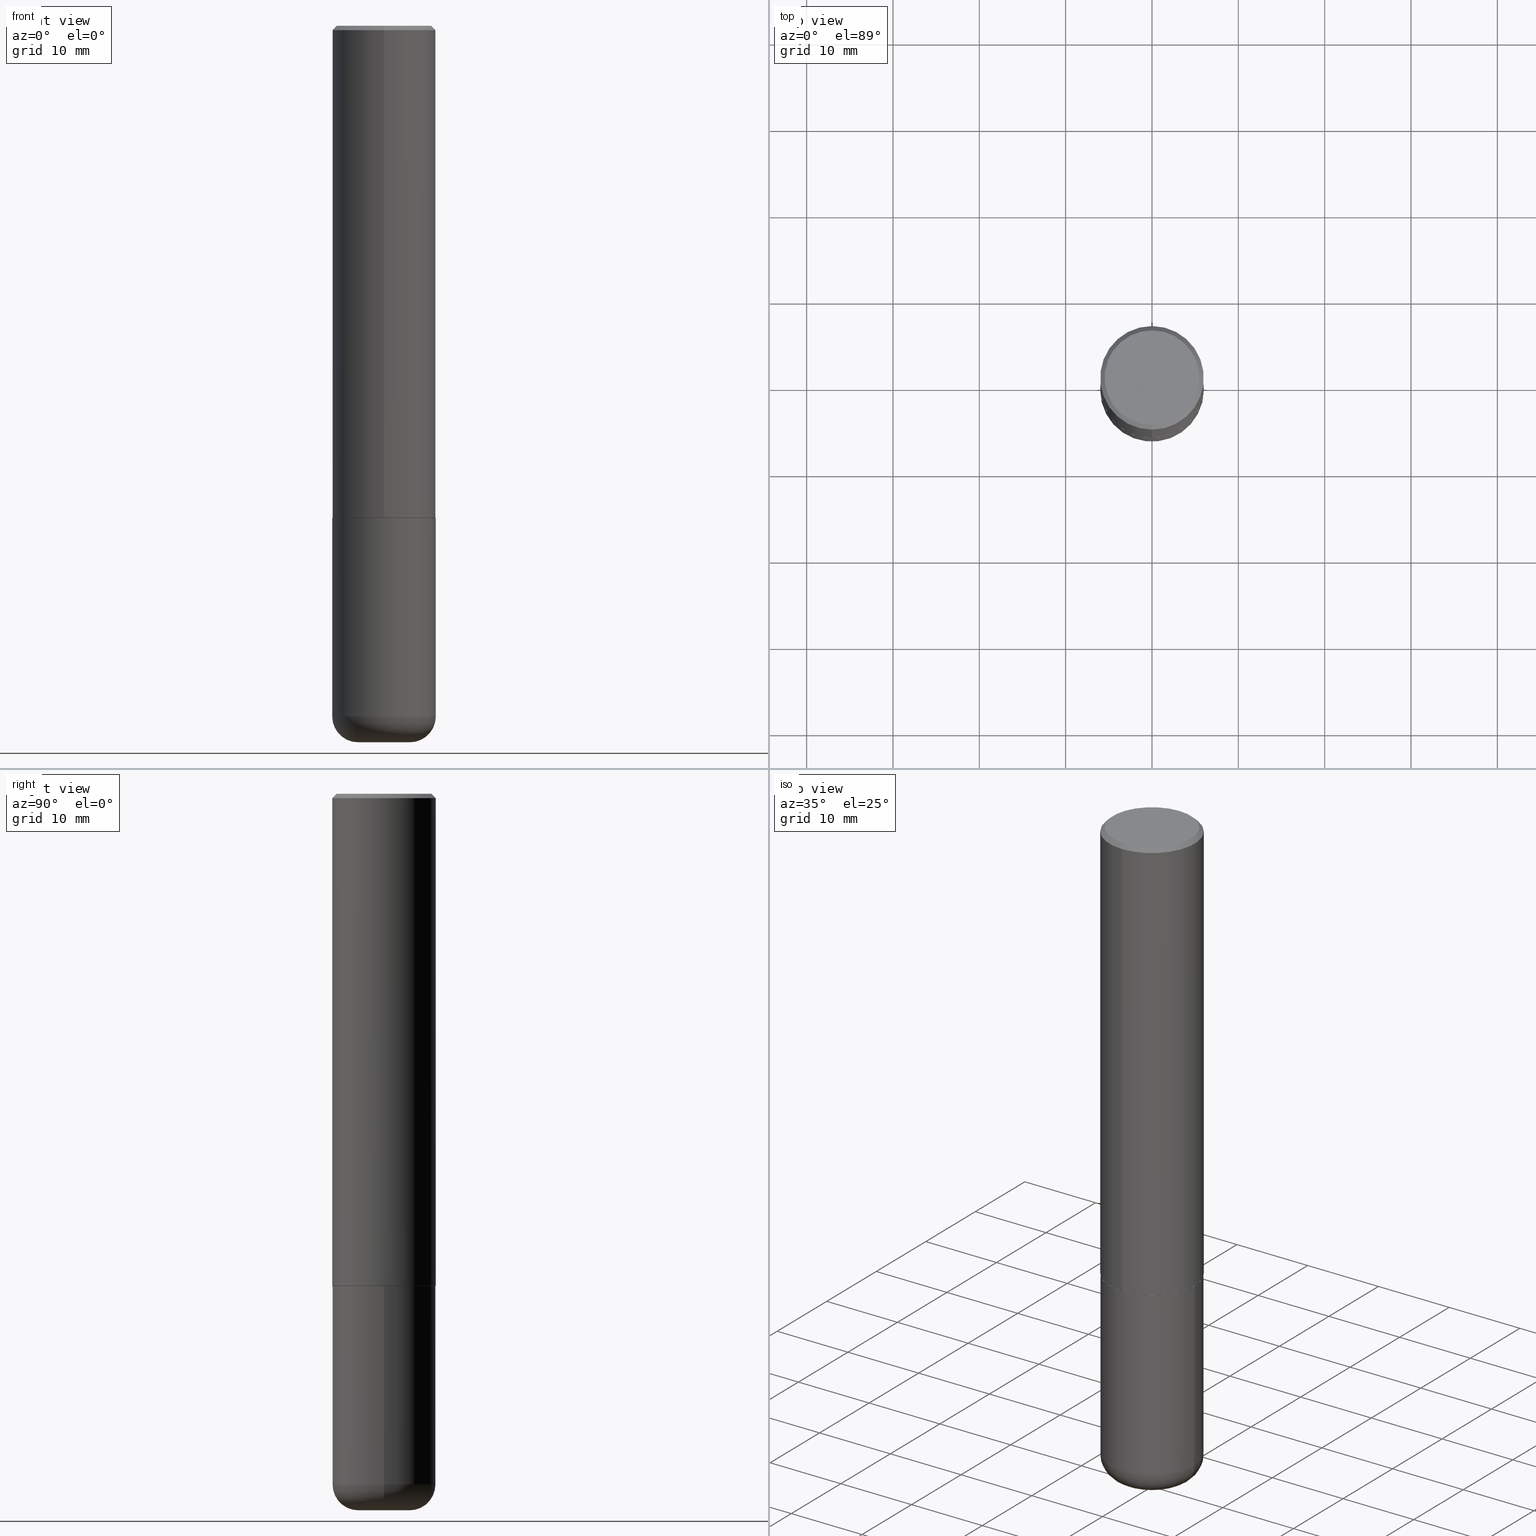
[diagram: canonical four-view strip — front | top / right | iso, engineering-drawing reading convention]
A machine part, canonical four-view strip (front | top / right | iso — engineering-drawing reading convention). The complete STEP part file that produces these views, byte-faithful:
ISO-10303-21;
HEADER;
FILE_DESCRIPTION (( 'STEP AP203' ),
    '1' );
FILE_NAME ('45179.STEP',
    '2024-03-04T16:05:40',
    ( '' ),
    ( '' ),
    'SwSTEP 2.0',
    'SolidWorks 2023',
    '' );
FILE_SCHEMA (( 'CONFIG_CONTROL_DESIGN' ));
ENDSEC;

DATA;
#1 = ORIENTED_EDGE ( 'NONE', *, *, #212, .T. ) ;
#2 = DIRECTION ( 'NONE',  ( -2.445468806185136877E-29, 3.491481338843145188E-15, 1.000000000000000000 ) ) ;
#3 = ORIENTED_EDGE ( 'NONE', *, *, #411, .T. ) ;
#4 = CARTESIAN_POINT ( 'NONE',  ( -1.620449627073635276E-15, -0.2362000000000001043, -0.01999999999999922673 ) ) ;
#5 = CIRCLE ( 'NONE', #338, 0.2362000000000000210 ) ;
#6 = DIRECTION ( 'NONE',  ( 4.937700262164541731E-15, 0.7071067811865442421, -0.7071067811865507924 ) ) ;
#7 = EDGE_CURVE ( 'NONE', #370, #83, #314, .T. ) ;
#8 =( NAMED_UNIT ( * ) SI_UNIT ( $, .STERADIAN. ) SOLID_ANGLE_UNIT ( ) );
#9 = VERTEX_POINT ( 'NONE', #57 ) ;
#10 = ORIENTED_EDGE ( 'NONE', *, *, #324, .F. ) ;
#11 = DIRECTION ( 'NONE',  ( -2.445468806185136597E-29, 3.491481338843145583E-15, 1.000000000000000000 ) ) ;
#12 = AXIS2_PLACEMENT_3D ( 'NONE', #410, #403, #375 ) ;
#13 = VECTOR ( 'NONE', #257, 39.37007874015748143 ) ;
#14 =( GEOMETRIC_REPRESENTATION_CONTEXT ( 3 ) GLOBAL_UNCERTAINTY_ASSIGNED_CONTEXT ( ( #113 ) ) GLOBAL_UNIT_ASSIGNED_CONTEXT ( ( #346, #367, #8 ) ) REPRESENTATION_CONTEXT ( 'NONE', 'WORKASPACE' ) );
#15 = LINE ( 'NONE', #192, #271 ) ;
#16 = EDGE_CURVE ( 'NONE', #179, #213, #304, .T. ) ;
#17 = DIRECTION ( 'NONE',  ( 6.982962677686265922E-15, 1.000000000000000000, -3.490307074209145884E-15 ) ) ;
#18 = PERSON_AND_ORGANIZATION ( #42, #409 ) ;
#19 = CYLINDRICAL_SURFACE ( 'NONE', #400, 0.2361999999999999933 ) ;
#20 = TOROIDAL_SURFACE ( 'NONE', #320, 0.1180999999999999966, 0.1180999999999997607 ) ;
#21 = APPROVAL_PERSON_ORGANIZATION ( #404, #353, #348 ) ;
#22 = EDGE_CURVE ( 'NONE', #83, #391, #15, .T. ) ;
#23 = DATE_AND_TIME ( #94, #146 ) ;
#24 = ORIENTED_EDGE ( 'NONE', *, *, #110, .F. ) ;
#25 = EDGE_CURVE ( 'NONE', #372, #239, #63, .T. ) ;
#26 = CARTESIAN_POINT ( 'NONE',  ( 0.000000000000000000, 0.000000000000000000, 0.000000000000000000 ) ) ;
#27 = AXIS2_PLACEMENT_3D ( 'NONE', #101, #93, #196 ) ;
#28 = LINE ( 'NONE', #231, #140 ) ;
#29 = DIRECTION ( 'NONE',  ( -2.446288790796431609E-29, 3.490307074209145490E-15, 1.000000000000000000 ) ) ;
#30 = FACE_OUTER_BOUND ( 'NONE', #107, .T. ) ;
#31 = PRODUCT ( '45179', '45179', '', ( #251 ) ) ;
#32 = DIMENSIONAL_EXPONENTS ( 1.000000000000000000, 0.000000000000000000, 0.000000000000000000, 0.000000000000000000, 0.000000000000000000, 0.000000000000000000, 0.000000000000000000 ) ;
#33 = FACE_OUTER_BOUND ( 'NONE', #302, .T. ) ;
#34 = CARTESIAN_POINT ( 'NONE',  ( 1.649375784469496722E-15, 0.2361999999999999655, -0.02000000000000087472 ) ) ;
#35 = ADVANCED_FACE ( 'NONE', ( #187 ), #297, .T. ) ;
#36 = CIRCLE ( 'NONE', #278, 0.2362000000000002986 ) ;
#37 = CARTESIAN_POINT ( 'NONE',  ( -0.2361999999999998823, -9.318467682955017493E-15, -3.149600000000000399 ) ) ;
#38 = DESIGN_CONTEXT ( 'detailed design', #65, 'design' ) ;
#39 = FACE_OUTER_BOUND ( 'NONE', #52, .T. ) ;
#40 = EDGE_LOOP ( 'NONE', ( #227, #216, #181, #414 ) ) ;
#41 = CALENDAR_DATE ( 2024, 4, 3 ) ;
#42 = PERSON ( 'UNSPECIFIED', 'UNSPECIFIED', 'UNSPECIFIED', ('UNSPECIFIED'), ('UNSPECIFIED'), ('UNSPECIFIED') ) ;
#43 = ADVANCED_FACE ( 'NONE', ( #105 ), #316, .T. ) ;
#44 = ORIENTED_EDGE ( 'NONE', *, *, #362, .F. ) ;
#45 = DIRECTION ( 'NONE',  ( -2.445468806185136597E-29, 3.491481338843145583E-15, 1.000000000000000000 ) ) ;
#46 = CONICAL_SURFACE ( 'NONE', #377, 0.2351999999999999924, 0.7853981633975678500 ) ;
#47 = SECURITY_CLASSIFICATION ( '', '', #189 ) ;
#48 = ORIENTED_EDGE ( 'NONE', *, *, #281, .T. ) ;
#49 = CARTESIAN_POINT ( 'NONE',  ( 0.000000000000000000, 0.000000000000000000, 0.000000000000000000 ) ) ;
#50 = EDGE_CURVE ( 'NONE', #345, #391, #357, .T. ) ;
#51 = ORIENTED_EDGE ( 'NONE', *, *, #405, .F. ) ;
#52 = EDGE_LOOP ( 'NONE', ( #121, #176, #91, #393 ) ) ;
#53 = CARTESIAN_POINT ( 'NONE',  ( 7.991058417971169471E-29, -1.140911357093774486E-14, -3.267699999999999605 ) ) ;
#54 = ADVANCED_FACE ( 'NONE', ( #166 ), #294, .F. ) ;
#55 = AXIS2_PLACEMENT_3D ( 'NONE', #228, #387, #326 ) ;
#56 = LOCAL_TIME ( 11, 5, 40.00000000000000000, #378 ) ;
#57 = CARTESIAN_POINT ( 'NONE',  ( 1.579546157692634608E-15, 0.2162000000000002531, -9.682838899629094542E-16 ) ) ;
#58 = CALENDAR_DATE ( 2024, 4, 3 ) ;
#59 = COORDINATED_UNIVERSAL_TIME_OFFSET ( 5, 0, .BEHIND. ) ;
#60 = CC_DESIGN_PERSON_AND_ORGANIZATION_ASSIGNMENT ( #371, #90, ( #31 ) ) ;
#61 = DATE_TIME_ROLE ( 'classification_date' ) ;
#62 = CLOSED_SHELL ( 'NONE', ( #380, #206, #284, #167, #191, #74 ) ) ;
#63 = CIRCLE ( 'NONE', #100, 0.2362000000000000210 ) ;
#64 = CIRCLE ( 'NONE', #298, 0.2361999999999999933 ) ;
#65 = APPLICATION_CONTEXT ( 'configuration controlled 3d designs of mechanical parts and assemblies' ) ;
#66 = DIRECTION ( 'NONE',  ( -6.982962677686265133E-15, -1.000000000000000000, 3.484499991918703113E-15 ) ) ;
#67 = ORIENTED_EDGE ( 'NONE', *, *, #201, .T. ) ;
#68 = CC_DESIGN_PERSON_AND_ORGANIZATION_ASSIGNMENT ( #219, #317, ( #272 ) ) ;
#69 = EDGE_LOOP ( 'NONE', ( #364, #161, #307, #277 ) ) ;
#70 = CIRCLE ( 'NONE', #322, 0.2361999999999999933 ) ;
#71 = DIRECTION ( 'NONE',  ( 1.000000000000000000, -6.982962677686263555E-15, 4.883557194083111780E-29 ) ) ;
#72 = CARTESIAN_POINT ( 'NONE',  ( 0.000000000000000000, 0.000000000000000000, 0.000000000000000000 ) ) ;
#73 = DIRECTION ( 'NONE',  ( 6.982962677686265922E-15, 1.000000000000000000, -3.487819265831411350E-15 ) ) ;
#74 = ADVANCED_FACE ( 'NONE', ( #323 ), #386, .T. ) ;
#75 = DIRECTION ( 'NONE',  ( -1.000000000000000000, 6.982962677686265922E-15, -4.876176775795935793E-29 ) ) ;
#76 = MANIFOLD_SOLID_BREP ( 'Body-Move/Copy2[2]', #263 ) ;
#77 = TOROIDAL_SURFACE ( 'NONE', #369, 0.1180999999999999966, 0.1180999999999997607 ) ;
#78 = AXIS2_PLACEMENT_3D ( 'NONE', #72, #299, #261 ) ;
#79 = DIRECTION ( 'NONE',  ( -6.982962677686265922E-15, -1.000000000000000000, 3.490307074209145490E-15 ) ) ;
#80 = MANIFOLD_SOLID_BREP ( 'Body-Move/Copy2[1]', #62 ) ;
#81 = ORIENTED_EDGE ( 'NONE', *, *, #104, .F. ) ;
#82 = DIRECTION ( 'NONE',  ( 1.000000000000000000, -6.982962677686264344E-15, 0.000000000000000000 ) ) ;
#83 = VERTEX_POINT ( 'NONE', #162 ) ;
#84 = EDGE_LOOP ( 'NONE', ( #269, #342 ) ) ;
#85 = CARTESIAN_POINT ( 'NONE',  ( 1.674749228186611702E-15, 0.2351999999999921653, -2.244100000000000872 ) ) ;
#86 = ADVANCED_BREP_SHAPE_REPRESENTATION ( '45179', ( #80, #76, #186 ), #14 ) ;
#87 = CIRCLE ( 'NONE', #108, 0.1180999999999997607 ) ;
#88 = LOCAL_TIME ( 11, 5, 40.00000000000000000, #350 ) ;
#89 = EDGE_LOOP ( 'NONE', ( #44, #242 ) ) ;
#90 = PERSON_AND_ORGANIZATION_ROLE ( 'design_owner' ) ;
#91 = ORIENTED_EDGE ( 'NONE', *, *, #241, .T. ) ;
#92 = PERSON_AND_ORGANIZATION ( #42, #409 ) ;
#93 = DIRECTION ( 'NONE',  ( -2.446288790796431049E-29, 3.490307074209145884E-15, 1.000000000000000000 ) ) ;
#94 = CALENDAR_DATE ( 2024, 4, 3 ) ;
#95 = CIRCLE ( 'NONE', #175, 0.2351999999999999924 ) ;
#96 = APPROVAL_PERSON_ORGANIZATION ( #129, #368, #99 ) ;
#97 = COORDINATED_UNIVERSAL_TIME_OFFSET ( 5, 0, .BEHIND. ) ;
#98 = ADVANCED_FACE ( 'NONE', ( #288 ), #164, .F. ) ;
#99 = APPROVAL_ROLE ( '' ) ;
#100 = AXIS2_PLACEMENT_3D ( 'NONE', #352, #325, #347 ) ;
#101 = CARTESIAN_POINT ( 'NONE',  ( 5.489716675426272869E-29, -7.832598105232743804E-15, -2.244100000000000428 ) ) ;
#102 = AXIS2_PLACEMENT_3D ( 'NONE', #214, #11, #246 ) ;
#103 = DIRECTION ( 'NONE',  ( -2.446288790796431609E-29, 3.490307074209145490E-15, 1.000000000000000000 ) ) ;
#104 = EDGE_CURVE ( 'NONE', #237, #345, #407, .T. ) ;
#105 = FACE_OUTER_BOUND ( 'NONE', #40, .T. ) ;
#106 = DIRECTION ( 'NONE',  ( -2.445468806185136597E-29, 3.491481338843145583E-15, 1.000000000000000000 ) ) ;
#107 = EDGE_LOOP ( 'NONE', ( #339, #48 ) ) ;
#108 = AXIS2_PLACEMENT_3D ( 'NONE', #383, #226, #354 ) ;
#109 = AXIS2_PLACEMENT_3D ( 'NONE', #120, #45, #82 ) ;
#110 = EDGE_CURVE ( 'NONE', #213, #372, #87, .T. ) ;
#111 = DIRECTION ( 'NONE',  ( 2.446288790796431609E-29, -3.490307074209145490E-15, -1.000000000000000000 ) ) ;
#112 = CARTESIAN_POINT ( 'NONE',  ( -1.649375784469497117E-15, -0.2362000000000001598, 8.244105309282006832E-16 ) ) ;
#113 = UNCERTAINTY_MEASURE_WITH_UNIT (LENGTH_MEASURE( 1.000000000000000082E-05 ), #346, 'distance_accuracy_value', 'NONE');
#114 = CARTESIAN_POINT ( 'NONE',  ( 0.2361999999999999933, -1.649375784469496131E-15, 1.151752954443000088E-29 ) ) ;
#115 = EDGE_CURVE ( 'NONE', #204, #370, #95, .T. ) ;
#116 = VECTOR ( 'NONE', #202, 39.37007874015748143 ) ;
#117 = ORIENTED_EDGE ( 'NONE', *, *, #273, .F. ) ;
#118 = DIRECTION ( 'NONE',  ( 1.000000000000000000, -6.982962677686269077E-15, 0.000000000000000000 ) ) ;
#119 = ORIENTED_EDGE ( 'NONE', *, *, #110, .T. ) ;
#120 = CARTESIAN_POINT ( 'NONE',  ( 7.702248551960706711E-29, -1.099676962482037231E-14, -3.149600000000000399 ) ) ;
#121 = ORIENTED_EDGE ( 'NONE', *, *, #22, .F. ) ;
#122 = CARTESIAN_POINT ( 'NONE',  ( 0.2361999999999998823, -1.264614540928986883E-14, -3.149600000000000399 ) ) ;
#123 = EDGE_LOOP ( 'NONE', ( #173, #205, #67, #51 ) ) ;
#124 = CIRCLE ( 'NONE', #359, 0.2162000000000002531 ) ;
#125 = ORIENTED_EDGE ( 'NONE', *, *, #287, .T. ) ;
#126 = DIRECTION ( 'NONE',  ( -2.446288790796431609E-29, 3.490307074209145884E-15, 1.000000000000000000 ) ) ;
#127 = CYLINDRICAL_SURFACE ( 'NONE', #102, 0.2361999999999999933 ) ;
#128 = ADVANCED_FACE ( 'NONE', ( #232 ), #46, .T. ) ;
#129 = PERSON_AND_ORGANIZATION ( #42, #409 ) ;
#130 = AXIS2_PLACEMENT_3D ( 'NONE', #406, #381, #66 ) ;
#131 = DIRECTION ( 'NONE',  ( 2.446288790796431049E-29, -3.490307074209145884E-15, -1.000000000000000000 ) ) ;
#132 = CC_DESIGN_DATE_AND_TIME_ASSIGNMENT ( #23, #61, ( #47 ) ) ;
#133 = CARTESIAN_POINT ( 'NONE',  ( -1.620449627073635276E-15, -0.2362000000000001043, -0.01999999999999922673 ) ) ;
#134 = DIRECTION ( 'NONE',  ( 1.000000000000000000, -6.982962677686272233E-15, 0.000000000000000000 ) ) ;
#135 = CARTESIAN_POINT ( 'NONE',  ( -1.551844647095920733E-15, -0.2162000000000002531, 5.409248889251267552E-16 ) ) ;
#136 = DIRECTION ( 'NONE',  ( 5.024295867788662713E-15, 0.7071067811866345032, 0.7071067811864605313 ) ) ;
#137 = EDGE_CURVE ( 'NONE', #9, #391, #139, .T. ) ;
#138 = LINE ( 'NONE', #112, #116 ) ;
#139 = LINE ( 'NONE', #34, #408 ) ;
#140 = VECTOR ( 'NONE', #363, 39.37007874015748143 ) ;
#141 = DIRECTION ( 'NONE',  ( 2.438088387897960049E-29, -3.491481338843145188E-15, -1.000000000000000000 ) ) ;
#142 = DIRECTION ( 'NONE',  ( -2.445468806185136877E-29, 3.491481338843145188E-15, 1.000000000000000000 ) ) ;
#143 = ORIENTED_EDGE ( 'NONE', *, *, #151, .T. ) ;
#144 = CARTESIAN_POINT ( 'NONE',  ( -0.2361999999999999933, -7.737699506793781719E-15, -2.244100000000000428 ) ) ;
#145 = ADVANCED_FACE ( 'NONE', ( #395 ), #243, .T. ) ;
#146 = LOCAL_TIME ( 11, 5, 40.00000000000000000, #97 ) ;
#147 = EDGE_LOOP ( 'NONE', ( #81, #10, #274, #143 ) ) ;
#148 = DIRECTION ( 'NONE',  ( -2.446288790796431609E-29, 3.490307074209145490E-15, 1.000000000000000000 ) ) ;
#149 = ORIENTED_EDGE ( 'NONE', *, *, #25, .F. ) ;
#150 = FACE_OUTER_BOUND ( 'NONE', #69, .T. ) ;
#151 = EDGE_CURVE ( 'NONE', #391, #345, #5, .T. ) ;
#152 = ORIENTED_EDGE ( 'NONE', *, *, #115, .T. ) ;
#153 = COORDINATED_UNIVERSAL_TIME_OFFSET ( 5, 0, .BEHIND. ) ;
#154 = VECTOR ( 'NONE', #136, 39.37007874015748143 ) ;
#155 = ORIENTED_EDGE ( 'NONE', *, *, #411, .F. ) ;
#156 =( LENGTH_UNIT ( ) NAMED_UNIT ( * ) SI_UNIT ( $, .METRE. ) );
#157 = PERSON_AND_ORGANIZATION_ROLE ( 'design_supplier' ) ;
#158 = AXIS2_PLACEMENT_3D ( 'NONE', #265, #111, #73 ) ;
#159 = CIRCLE ( 'NONE', #351, 0.2351999999999999924 ) ;
#160 = DATE_AND_TIME ( #376, #88 ) ;
#161 = ORIENTED_EDGE ( 'NONE', *, *, #273, .T. ) ;
#162 = CARTESIAN_POINT ( 'NONE',  ( 1.678301941865385779E-15, 0.2361999999999924715, -2.243100000000000982 ) ) ;
#163 = AXIS2_PLACEMENT_3D ( 'NONE', #360, #328, #134 ) ;
#164 = PLANE ( 'NONE',  #27 ) ;
#165 = DIRECTION ( 'NONE',  ( -6.982962677686265922E-15, -1.000000000000000000, 3.469747663417772663E-15 ) ) ;
#166 = FACE_OUTER_BOUND ( 'NONE', #210, .T. ) ;
#167 = ADVANCED_FACE ( 'NONE', ( #361 ), #19, .T. ) ;
#168 = CARTESIAN_POINT ( 'NONE',  ( -1.642392821791754699E-15, -0.2352000000000078195, -2.244099999999999540 ) ) ;
#169 = DIRECTION ( 'NONE',  ( -2.446288790796431609E-29, 3.490307074209145490E-15, 1.000000000000000000 ) ) ;
#170 = CC_DESIGN_APPROVAL ( #397, ( #178 ) ) ;
#171 = CARTESIAN_POINT ( 'NONE',  ( 4.892577581592875165E-31, -6.980614148418308383E-17, -0.02000000000000005246 ) ) ;
#172 = LINE ( 'NONE', #114, #244 ) ;
#173 = ORIENTED_EDGE ( 'NONE', *, *, #7, .F. ) ;
#174 = PERSON_AND_ORGANIZATION_ROLE ( 'creator' ) ;
#175 = AXIS2_PLACEMENT_3D ( 'NONE', #292, #356, #384 ) ;
#176 = ORIENTED_EDGE ( 'NONE', *, *, #405, .T. ) ;
#177 = DIRECTION ( 'NONE',  ( -2.446288790796431609E-29, 3.490307074209145490E-15, 1.000000000000000000 ) ) ;
#178 = PRODUCT_DEFINITION ( 'UNKNOWN', '', #272, #38 ) ;
#179 = VERTEX_POINT ( 'NONE', #222 ) ;
#180 = DIRECTION ( 'NONE',  ( 1.000000000000000000, -6.982962677686272233E-15, 0.000000000000000000 ) ) ;
#181 = ORIENTED_EDGE ( 'NONE', *, *, #50, .F. ) ;
#182 = APPROVAL_STATUS ( 'not_yet_approved' ) ;
#183 = AXIS2_PLACEMENT_3D ( 'NONE', #250, #131, #17 ) ;
#184 = ORIENTED_EDGE ( 'NONE', *, *, #195, .F. ) ;
#185 = DIRECTION ( 'NONE',  ( -2.445468806185136597E-29, 3.491481338843145583E-15, 1.000000000000000000 ) ) ;
#186 = AXIS2_PLACEMENT_3D ( 'NONE', #49, #310, #336 ) ;
#187 = FACE_OUTER_BOUND ( 'NONE', #123, .T. ) ;
#188 = DATE_AND_TIME ( #58, #224 ) ;
#189 = SECURITY_CLASSIFICATION_LEVEL ( 'unclassified' ) ;
#190 = APPROVAL_STATUS ( 'not_yet_approved' ) ;
#191 = ADVANCED_FACE ( 'NONE', ( #33 ), #20, .T. ) ;
#192 = CARTESIAN_POINT ( 'NONE',  ( 1.678301941865357577E-15, 0.2362000000000001598, -8.244105309282006832E-16 ) ) ;
#193 = EDGE_LOOP ( 'NONE', ( #309, #398, #149, #24 ) ) ;
#194 = CARTESIAN_POINT ( 'NONE',  ( 0.2361999999999999933, -9.484609056967400443E-15, -2.244100000000000428 ) ) ;
#195 = EDGE_CURVE ( 'NONE', #179, #239, #256, .T. ) ;
#196 = DIRECTION ( 'NONE',  ( -6.982962677686265922E-15, -1.000000000000000000, 3.490307074209145884E-15 ) ) ;
#197 = CARTESIAN_POINT ( 'NONE',  ( 5.487876547960065873E-29, -7.835233272497903917E-15, -2.244100000000000428 ) ) ;
#198 = LINE ( 'NONE', #259, #290 ) ;
#199 = APPLICATION_CONTEXT ( 'configuration controlled 3d designs of mechanical parts and assemblies' ) ;
#200 = CARTESIAN_POINT ( 'NONE',  ( 4.892577581592875165E-31, -6.980614148418308383E-17, -0.02000000000000005246 ) ) ;
#201 = EDGE_CURVE ( 'NONE', #204, #401, #28, .T. ) ;
#202 = DIRECTION ( 'NONE',  ( -2.446288790796431609E-29, 3.490307074209145884E-15, 1.000000000000000000 ) ) ;
#203 = CIRCLE ( 'NONE', #109, 0.2362000000000000210 ) ;
#204 = VERTEX_POINT ( 'NONE', #168 ) ;
#205 = ORIENTED_EDGE ( 'NONE', *, *, #374, .T. ) ;
#206 = ADVANCED_FACE ( 'NONE', ( #332 ), #77, .T. ) ;
#207 = LOCAL_TIME ( 11, 5, 40.00000000000000000, #153 ) ;
#208 = ORIENTED_EDGE ( 'NONE', *, *, #16, .T. ) ;
#209 = DIRECTION ( 'NONE',  ( -6.982962677686265133E-15, -1.000000000000000000, 3.484499991918703113E-15 ) ) ;
#210 = EDGE_LOOP ( 'NONE', ( #276, #1 ) ) ;
#211 = APPLICATION_PROTOCOL_DEFINITION ( 'international standard', 'config_control_design', 1994, #65 ) ;
#212 = EDGE_CURVE ( 'NONE', #237, #9, #416, .T. ) ;
#213 = VERTEX_POINT ( 'NONE', #389 ) ;
#214 = CARTESIAN_POINT ( 'NONE',  ( 0.000000000000000000, 0.000000000000000000, 0.000000000000000000 ) ) ;
#215 = AXIS2_PLACEMENT_3D ( 'NONE', #282, #29, #258 ) ;
#216 = ORIENTED_EDGE ( 'NONE', *, *, #22, .T. ) ;
#217 = APPROVAL_STATUS ( 'not_yet_approved' ) ;
#218 = AXIS2_PLACEMENT_3D ( 'NONE', #53, #185, #180 ) ;
#219 = PERSON_AND_ORGANIZATION ( #42, #409 ) ;
#220 = APPROVAL_DATE_TIME ( #188, #368 ) ;
#221 = CC_DESIGN_PERSON_AND_ORGANIZATION_ASSIGNMENT ( #252, #283, ( #47 ) ) ;
#222 = CARTESIAN_POINT ( 'NONE',  ( -0.1181000000000000383, -9.944215141480041685E-15, -3.267699999999999605 ) ) ;
#223 = AXIS2_PLACEMENT_3D ( 'NONE', #235, #412, #79 ) ;
#224 = LOCAL_TIME ( 11, 5, 40.00000000000000000, #59 ) ;
#225 = EDGE_LOOP ( 'NONE', ( #337, #311, #366, #279 ) ) ;
#226 = DIRECTION ( 'NONE',  ( -6.982962677686266711E-15, -1.000000000000000000, 3.491481338843145583E-15 ) ) ;
#227 = ORIENTED_EDGE ( 'NONE', *, *, #254, .T. ) ;
#228 = CARTESIAN_POINT ( 'NONE',  ( -0.1180999999999999966, -1.015761865388769332E-14, -3.149600000000000399 ) ) ;
#229 = CC_DESIGN_SECURITY_CLASSIFICATION ( #47, ( #272 ) ) ;
#230 = CARTESIAN_POINT ( 'NONE',  ( 1.671196514507810212E-15, 0.2351999999999921653, -2.244100000000000872 ) ) ;
#231 = CARTESIAN_POINT ( 'NONE',  ( -1.642392821791754699E-15, -0.2352000000000078195, -2.244099999999999540 ) ) ;
#232 = FACE_OUTER_BOUND ( 'NONE', #247, .T. ) ;
#233 = CARTESIAN_POINT ( 'NONE',  ( 5.487270386635476339E-29, -7.829107798158534704E-15, -2.243100000000000094 ) ) ;
#234 = DIRECTION ( 'NONE',  ( -6.982962677686265922E-15, -1.000000000000000000, 3.487819265831411350E-15 ) ) ;
#235 = CARTESIAN_POINT ( 'NONE',  ( 5.227217669423442598E-45, -7.458070722745632774E-31, -2.136795005188913741E-16 ) ) ;
#236 = CIRCLE ( 'NONE', #333, 0.2362000000000002986 ) ;
#237 = VERTEX_POINT ( 'NONE', #135 ) ;
#238 = CARTESIAN_POINT ( 'NONE',  ( 5.487876547960065873E-29, -7.835233272497903917E-15, -2.244100000000000428 ) ) ;
#239 = VERTEX_POINT ( 'NONE', #37 ) ;
#240 = CARTESIAN_POINT ( 'NONE',  ( 5.487270386635476339E-29, -7.829107798158534704E-15, -2.243100000000000094 ) ) ;
#241 = EDGE_CURVE ( 'NONE', #401, #345, #138, .T. ) ;
#242 = ORIENTED_EDGE ( 'NONE', *, *, #16, .F. ) ;
#243 = CONICAL_SURFACE ( 'NONE', #158, 0.2362000000000000210, 0.7853981633974471688 ) ;
#244 = VECTOR ( 'NONE', #2, 39.37007874015748143 ) ;
#245 = VERTEX_POINT ( 'NONE', #194 ) ;
#246 = DIRECTION ( 'NONE',  ( 1.000000000000000000, -6.982962677686266711E-15, 4.876176775795936353E-29 ) ) ;
#247 = EDGE_LOOP ( 'NONE', ( #152, #396, #365, #335 ) ) ;
#248 = DIRECTION ( 'NONE',  ( -2.446288790796431609E-29, 3.490307074209145490E-15, 1.000000000000000000 ) ) ;
#249 = ADVANCED_FACE ( 'NONE', ( #358 ), #313, .T. ) ;
#250 = CARTESIAN_POINT ( 'NONE',  ( 1.509716530915772493E-15, 0.2162000000000002531, -8.614441397034637301E-16 ) ) ;
#251 = MECHANICAL_CONTEXT ( 'NONE', #199, 'mechanical' ) ;
#252 = PERSON_AND_ORGANIZATION ( #42, #409 ) ;
#253 = AXIS2_PLACEMENT_3D ( 'NONE', #171, #301, #418 ) ;
#254 = EDGE_CURVE ( 'NONE', #401, #83, #36, .T. ) ;
#255 = EDGE_LOOP ( 'NONE', ( #117, #3, #125, #260 ) ) ;
#256 = CIRCLE ( 'NONE', #55, 0.1180999999999997607 ) ;
#257 = DIRECTION ( 'NONE',  ( -4.851104656540957964E-15, -0.7071067811865491270, -0.7071067811865459074 ) ) ;
#258 = DIRECTION ( 'NONE',  ( -6.982962677686265922E-15, -1.000000000000000000, 3.487819265831411350E-15 ) ) ;
#259 = CARTESIAN_POINT ( 'NONE',  ( -0.2361999999999999933, 1.678301941865356591E-15, -1.161852468318208757E-29 ) ) ;
#260 = ORIENTED_EDGE ( 'NONE', *, *, #281, .F. ) ;
#261 = DIRECTION ( 'NONE',  ( -6.982962677686265922E-15, -1.000000000000000000, 3.490307074209145490E-15 ) ) ;
#262 = DIRECTION ( 'NONE',  ( -2.445468806185136597E-29, 3.491481338843145583E-15, 1.000000000000000000 ) ) ;
#263 = CLOSED_SHELL ( 'NONE', ( #128, #43, #145, #249, #267, #35, #98, #54 ) ) ;
#264 = APPROVAL_PERSON_ORGANIZATION ( #343, #397, #312 ) ;
#265 = CARTESIAN_POINT ( 'NONE',  ( 4.892577581592875165E-31, -6.980614148418308383E-17, -0.02000000000000005246 ) ) ;
#266 = DIRECTION ( 'NONE',  ( -2.445468806185136597E-29, 3.491481338843145583E-15, 1.000000000000000000 ) ) ;
#267 = ADVANCED_FACE ( 'NONE', ( #39 ), #334, .T. ) ;
#268 = DIRECTION ( 'NONE',  ( -6.982962677686265133E-15, -1.000000000000000000, 3.484499991918703113E-15 ) ) ;
#269 = ORIENTED_EDGE ( 'NONE', *, *, #115, .F. ) ;
#270 = CARTESIAN_POINT ( 'NONE',  ( 5.487876547960065873E-29, -7.835233272497903917E-15, -2.244100000000000428 ) ) ;
#271 = VECTOR ( 'NONE', #126, 39.37007874015748143 ) ;
#272 = PRODUCT_DEFINITION_FORMATION_WITH_SPECIFIED_SOURCE ( 'ANY', '', #31, .NOT_KNOWN. ) ;
#273 = EDGE_CURVE ( 'NONE', #239, #300, #198, .T. ) ;
#274 = ORIENTED_EDGE ( 'NONE', *, *, #137, .T. ) ;
#275 = CARTESIAN_POINT ( 'NONE',  ( 1.649375784469496722E-15, 0.2361999999999999655, -0.02000000000000087472 ) ) ;
#276 = ORIENTED_EDGE ( 'NONE', *, *, #324, .T. ) ;
#277 = ORIENTED_EDGE ( 'NONE', *, *, #287, .F. ) ;
#278 = AXIS2_PLACEMENT_3D ( 'NONE', #233, #296, #165 ) ;
#279 = ORIENTED_EDGE ( 'NONE', *, *, #137, .F. ) ;
#280 = DATE_AND_TIME ( #41, #207 ) ;
#281 = EDGE_CURVE ( 'NONE', #300, #245, #64, .T. ) ;
#282 = CARTESIAN_POINT ( 'NONE',  ( 4.892577581592875165E-31, -6.980614148418308383E-17, -0.02000000000000005246 ) ) ;
#283 = PERSON_AND_ORGANIZATION_ROLE ( 'classification_officer' ) ;
#284 = ADVANCED_FACE ( 'NONE', ( #30 ), #417, .F. ) ;
#285 = APPROVAL_DATE_TIME ( #379, #353 ) ;
#286 = DIRECTION ( 'NONE',  ( -6.982962677686265922E-15, -1.000000000000000000, 3.490307074209145490E-15 ) ) ;
#287 = EDGE_CURVE ( 'NONE', #372, #245, #172, .T. ) ;
#288 = FACE_OUTER_BOUND ( 'NONE', #84, .T. ) ;
#289 = AXIS2_PLACEMENT_3D ( 'NONE', #26, #103, #286 ) ;
#290 = VECTOR ( 'NONE', #142, 39.37007874015748143 ) ;
#291 = CC_DESIGN_DATE_AND_TIME_ASSIGNMENT ( #160, #321, ( #178 ) ) ;
#292 = CARTESIAN_POINT ( 'NONE',  ( 5.489716675426272869E-29, -7.832598105232743804E-15, -2.244100000000000428 ) ) ;
#293 = DIRECTION ( 'NONE',  ( -2.445468806185136597E-29, 3.491481338843145583E-15, 1.000000000000000000 ) ) ;
#294 = PLANE ( 'NONE',  #183 ) ;
#295 = CC_DESIGN_PERSON_AND_ORGANIZATION_ASSIGNMENT ( #18, #157, ( #272 ) ) ;
#296 = DIRECTION ( 'NONE',  ( -2.446288790796431609E-29, 3.490307074209145490E-15, 1.000000000000000000 ) ) ;
#297 = CONICAL_SURFACE ( 'NONE', #130, 0.2351999999999999924, 0.7853981633975678500 ) ;
#298 = AXIS2_PLACEMENT_3D ( 'NONE', #197, #106, #329 ) ;
#299 = DIRECTION ( 'NONE',  ( -2.446288790796431609E-29, 3.490307074209145490E-15, 1.000000000000000000 ) ) ;
#300 = VERTEX_POINT ( 'NONE', #144 ) ;
#301 = DIRECTION ( 'NONE',  ( 2.446288790796431609E-29, -3.490307074209145490E-15, -1.000000000000000000 ) ) ;
#302 = EDGE_LOOP ( 'NONE', ( #184, #208, #119, #155 ) ) ;
#303 = CARTESIAN_POINT ( 'NONE',  ( 5.227217669423442598E-45, -7.458070722745632774E-31, -2.136795005188913741E-16 ) ) ;
#304 = CIRCLE ( 'NONE', #163, 0.1181000000000000105 ) ;
#305 = DIRECTION ( 'NONE',  ( -2.446288790796431609E-29, 3.490307074209145490E-15, 1.000000000000000000 ) ) ;
#306 = CC_DESIGN_APPROVAL ( #353, ( #47 ) ) ;
#307 = ORIENTED_EDGE ( 'NONE', *, *, #318, .F. ) ;
#308 = DIRECTION ( 'NONE',  ( -6.982962677686265922E-15, -1.000000000000000000, 3.490307074209145490E-15 ) ) ;
#309 = ORIENTED_EDGE ( 'NONE', *, *, #362, .T. ) ;
#310 = DIRECTION ( 'NONE',  ( 0.000000000000000000, 0.000000000000000000, 1.000000000000000000 ) ) ;
#311 = ORIENTED_EDGE ( 'NONE', *, *, #104, .T. ) ;
#312 = APPROVAL_ROLE ( '' ) ;
#313 = CONICAL_SURFACE ( 'NONE', #253, 0.2362000000000000210, 0.7853981633974471688 ) ;
#314 = LINE ( 'NONE', #230, #154 ) ;
#315 = LENGTH_MEASURE_WITH_UNIT ( LENGTH_MEASURE( 0.02539999999999999897 ), #156 );
#316 = CYLINDRICAL_SURFACE ( 'NONE', #289, 0.2362000000000001598 ) ;
#317 = PERSON_AND_ORGANIZATION_ROLE ( 'creator' ) ;
#318 = EDGE_CURVE ( 'NONE', #245, #300, #70, .T. ) ;
#319 = SHAPE_DEFINITION_REPRESENTATION ( #413, #86 ) ;
#320 = AXIS2_PLACEMENT_3D ( 'NONE', #331, #266, #71 ) ;
#321 = DATE_TIME_ROLE ( 'creation_date' ) ;
#322 = AXIS2_PLACEMENT_3D ( 'NONE', #270, #392, #118 ) ;
#323 = FACE_OUTER_BOUND ( 'NONE', #89, .T. ) ;
#324 = EDGE_CURVE ( 'NONE', #9, #237, #124, .T. ) ;
#325 = DIRECTION ( 'NONE',  ( -2.445468806185136597E-29, 3.491481338843145583E-15, 1.000000000000000000 ) ) ;
#326 = DIRECTION ( 'NONE',  ( -1.000000000000000000, 7.105427357601001859E-15, 0.000000000000000000 ) ) ;
#327 = CC_DESIGN_APPROVAL ( #368, ( #272 ) ) ;
#328 = DIRECTION ( 'NONE',  ( -2.445468806185136597E-29, 3.491481338843145583E-15, 1.000000000000000000 ) ) ;
#329 = DIRECTION ( 'NONE',  ( 1.000000000000000000, -6.982962677686269077E-15, 0.000000000000000000 ) ) ;
#330 = CC_DESIGN_PERSON_AND_ORGANIZATION_ASSIGNMENT ( #92, #174, ( #178 ) ) ;
#331 = CARTESIAN_POINT ( 'NONE',  ( 7.702248551960706711E-29, -1.099676962482037231E-14, -3.149600000000000399 ) ) ;
#332 = FACE_OUTER_BOUND ( 'NONE', #193, .T. ) ;
#333 = AXIS2_PLACEMENT_3D ( 'NONE', #240, #177, #399 ) ;
#334 = CYLINDRICAL_SURFACE ( 'NONE', #78, 0.2362000000000001598 ) ;
#335 = ORIENTED_EDGE ( 'NONE', *, *, #201, .F. ) ;
#336 = DIRECTION ( 'NONE',  ( 1.000000000000000000, 0.000000000000000000, 0.000000000000000000 ) ) ;
#337 = ORIENTED_EDGE ( 'NONE', *, *, #212, .F. ) ;
#338 = AXIS2_PLACEMENT_3D ( 'NONE', #200, #169, #234 ) ;
#339 = ORIENTED_EDGE ( 'NONE', *, *, #318, .T. ) ;
#340 = CARTESIAN_POINT ( 'NONE',  ( 5.489716675426272869E-29, -7.832598105232743804E-15, -2.244100000000000428 ) ) ;
#341 = PRODUCT_RELATED_PRODUCT_CATEGORY ( 'detail', '', ( #31 ) ) ;
#342 = ORIENTED_EDGE ( 'NONE', *, *, #374, .F. ) ;
#343 = PERSON_AND_ORGANIZATION ( #42, #409 ) ;
#344 = DIRECTION ( 'NONE',  ( 1.000000000000000000, -6.982962677686266711E-15, 4.876176775795936353E-29 ) ) ;
#345 = VERTEX_POINT ( 'NONE', #4 ) ;
#346 =( CONVERSION_BASED_UNIT ( 'INCH', #315 ) LENGTH_UNIT ( ) NAMED_UNIT ( #32 ) );
#347 = DIRECTION ( 'NONE',  ( 1.000000000000000000, -6.982962677686264344E-15, 0.000000000000000000 ) ) ;
#348 = APPROVAL_ROLE ( '' ) ;
#349 = CALENDAR_DATE ( 2024, 4, 3 ) ;
#350 = COORDINATED_UNIVERSAL_TIME_OFFSET ( 5, 0, .BEHIND. ) ;
#351 = AXIS2_PLACEMENT_3D ( 'NONE', #340, #148, #209 ) ;
#352 = CARTESIAN_POINT ( 'NONE',  ( 7.702248551960706711E-29, -1.099676962482037231E-14, -3.149600000000000399 ) ) ;
#353 = APPROVAL ( #217, 'UNSPECIFIED' ) ;
#354 = DIRECTION ( 'NONE',  ( 1.000000000000000000, -6.982962677686270655E-15, 0.000000000000000000 ) ) ;
#355 = CARTESIAN_POINT ( 'NONE',  ( 0.000000000000000000, 0.000000000000000000, 0.000000000000000000 ) ) ;
#356 = DIRECTION ( 'NONE',  ( -2.446288790796431609E-29, 3.490307074209145490E-15, 1.000000000000000000 ) ) ;
#357 = CIRCLE ( 'NONE', #215, 0.2362000000000000210 ) ;
#358 = FACE_OUTER_BOUND ( 'NONE', #147, .T. ) ;
#359 = AXIS2_PLACEMENT_3D ( 'NONE', #303, #248, #308 ) ;
#360 = CARTESIAN_POINT ( 'NONE',  ( 7.991058417971169471E-29, -1.140911357093774486E-14, -3.267699999999999605 ) ) ;
#361 = FACE_OUTER_BOUND ( 'NONE', #255, .T. ) ;
#362 = EDGE_CURVE ( 'NONE', #213, #179, #388, .T. ) ;
#363 = DIRECTION ( 'NONE',  ( -4.937700262165138110E-15, -0.7071067811866296182, 0.7071067811864654162 ) ) ;
#364 = ORIENTED_EDGE ( 'NONE', *, *, #25, .T. ) ;
#365 = ORIENTED_EDGE ( 'NONE', *, *, #254, .F. ) ;
#366 = ORIENTED_EDGE ( 'NONE', *, *, #50, .T. ) ;
#367 =( NAMED_UNIT ( * ) PLANE_ANGLE_UNIT ( ) SI_UNIT ( $, .RADIAN. ) );
#368 = APPROVAL ( #190, 'UNSPECIFIED' ) ;
#369 = AXIS2_PLACEMENT_3D ( 'NONE', #415, #293, #385 ) ;
#370 = VERTEX_POINT ( 'NONE', #85 ) ;
#371 = PERSON_AND_ORGANIZATION ( #42, #409 ) ;
#372 = VERTEX_POINT ( 'NONE', #122 ) ;
#373 = APPLICATION_PROTOCOL_DEFINITION ( 'international standard', 'config_control_design', 1994, #199 ) ;
#374 = EDGE_CURVE ( 'NONE', #370, #204, #159, .T. ) ;
#375 = DIRECTION ( 'NONE',  ( -1.000000000000000000, 6.982962677686265922E-15, -4.876176775795935793E-29 ) ) ;
#376 = CALENDAR_DATE ( 2024, 4, 3 ) ;
#377 = AXIS2_PLACEMENT_3D ( 'NONE', #390, #305, #268 ) ;
#378 = COORDINATED_UNIVERSAL_TIME_OFFSET ( 5, 0, .BEHIND. ) ;
#379 = DATE_AND_TIME ( #349, #56 ) ;
#380 = ADVANCED_FACE ( 'NONE', ( #150 ), #127, .T. ) ;
#381 = DIRECTION ( 'NONE',  ( -2.446288790796431609E-29, 3.490307074209145490E-15, 1.000000000000000000 ) ) ;
#382 = AXIS2_PLACEMENT_3D ( 'NONE', #238, #141, #75 ) ;
#383 = CARTESIAN_POINT ( 'NONE',  ( 0.1180999999999999966, -1.182145751705512057E-14, -3.149600000000000399 ) ) ;
#384 = DIRECTION ( 'NONE',  ( -6.982962677686265133E-15, -1.000000000000000000, 3.484499991918703113E-15 ) ) ;
#385 = DIRECTION ( 'NONE',  ( 1.000000000000000000, -6.982962677686263555E-15, 4.883557194083111780E-29 ) ) ;
#386 = PLANE ( 'NONE',  #12 ) ;
#387 = DIRECTION ( 'NONE',  ( 7.105427357601001859E-15, 1.000000000000000000, -3.491481338843145583E-15 ) ) ;
#388 = CIRCLE ( 'NONE', #218, 0.1181000000000000105 ) ;
#389 = CARTESIAN_POINT ( 'NONE',  ( 0.1181000000000000105, -1.223380146317249313E-14, -3.267699999999999605 ) ) ;
#390 = CARTESIAN_POINT ( 'NONE',  ( 5.489716675426272869E-29, -7.832598105232743804E-15, -2.244100000000000428 ) ) ;
#391 = VERTEX_POINT ( 'NONE', #275 ) ;
#392 = DIRECTION ( 'NONE',  ( -2.445468806185136597E-29, 3.491481338843145583E-15, 1.000000000000000000 ) ) ;
#393 = ORIENTED_EDGE ( 'NONE', *, *, #151, .F. ) ;
#394 = CARTESIAN_POINT ( 'NONE',  ( -1.649375784469443277E-15, -0.2362000000000081257, -2.243099999999999206 ) ) ;
#395 = FACE_OUTER_BOUND ( 'NONE', #225, .T. ) ;
#396 = ORIENTED_EDGE ( 'NONE', *, *, #7, .T. ) ;
#397 = APPROVAL ( #182, 'UNSPECIFIED' ) ;
#398 = ORIENTED_EDGE ( 'NONE', *, *, #195, .T. ) ;
#399 = DIRECTION ( 'NONE',  ( -6.982962677686265922E-15, -1.000000000000000000, 3.469747663417772663E-15 ) ) ;
#400 = AXIS2_PLACEMENT_3D ( 'NONE', #355, #262, #344 ) ;
#401 = VERTEX_POINT ( 'NONE', #394 ) ;
#402 = APPROVAL_DATE_TIME ( #280, #397 ) ;
#403 = DIRECTION ( 'NONE',  ( 2.438088387897960049E-29, -3.491481338843145188E-15, -1.000000000000000000 ) ) ;
#404 = PERSON_AND_ORGANIZATION ( #42, #409 ) ;
#405 = EDGE_CURVE ( 'NONE', #83, #401, #236, .T. ) ;
#406 = CARTESIAN_POINT ( 'NONE',  ( 5.489716675426272869E-29, -7.832598105232743804E-15, -2.244100000000000428 ) ) ;
#407 = LINE ( 'NONE', #133, #13 ) ;
#408 = VECTOR ( 'NONE', #6, 39.37007874015748143 ) ;
#409 = ORGANIZATION ( 'UNSPECIFIED', 'UNSPECIFIED', '' ) ;
#410 = CARTESIAN_POINT ( 'NONE',  ( 1.854752379248561175E-28, 3.708345682062618425E-15, -3.267699999999999605 ) ) ;
#411 = EDGE_CURVE ( 'NONE', #239, #372, #203, .T. ) ;
#412 = DIRECTION ( 'NONE',  ( -2.446288790796431609E-29, 3.490307074209145490E-15, 1.000000000000000000 ) ) ;
#413 = PRODUCT_DEFINITION_SHAPE ( 'NONE', 'NONE',  #178 ) ;
#414 = ORIENTED_EDGE ( 'NONE', *, *, #241, .F. ) ;
#415 = CARTESIAN_POINT ( 'NONE',  ( 7.702248551960706711E-29, -1.099676962482037231E-14, -3.149600000000000399 ) ) ;
#416 = CIRCLE ( 'NONE', #223, 0.2162000000000002531 ) ;
#417 = PLANE ( 'NONE',  #382 ) ;
#418 = DIRECTION ( 'NONE',  ( 6.982962677686265922E-15, 1.000000000000000000, -3.487819265831411350E-15 ) ) ;
ENDSEC;
END-ISO-10303-21;
